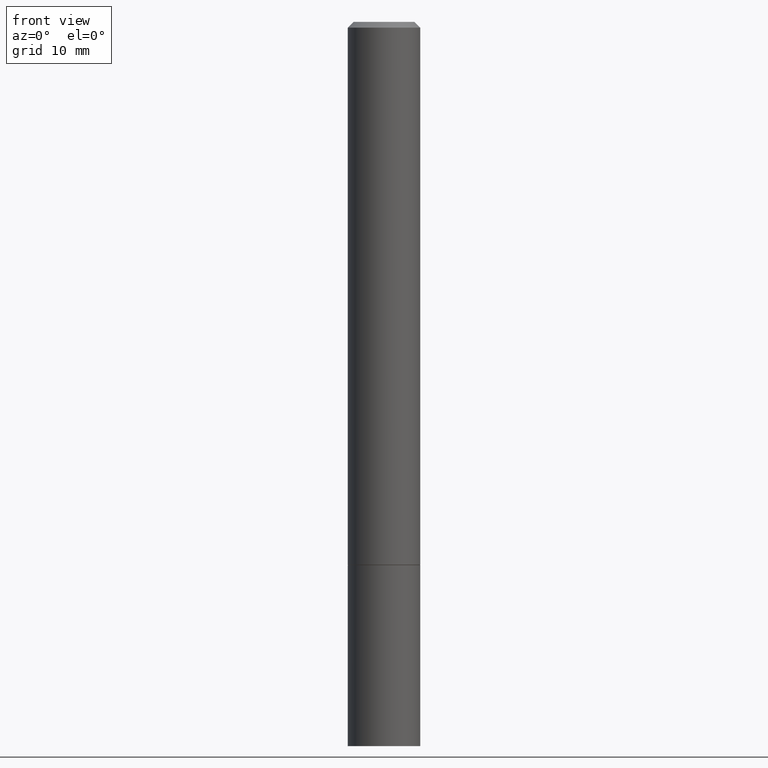
[diagram: clean part render]
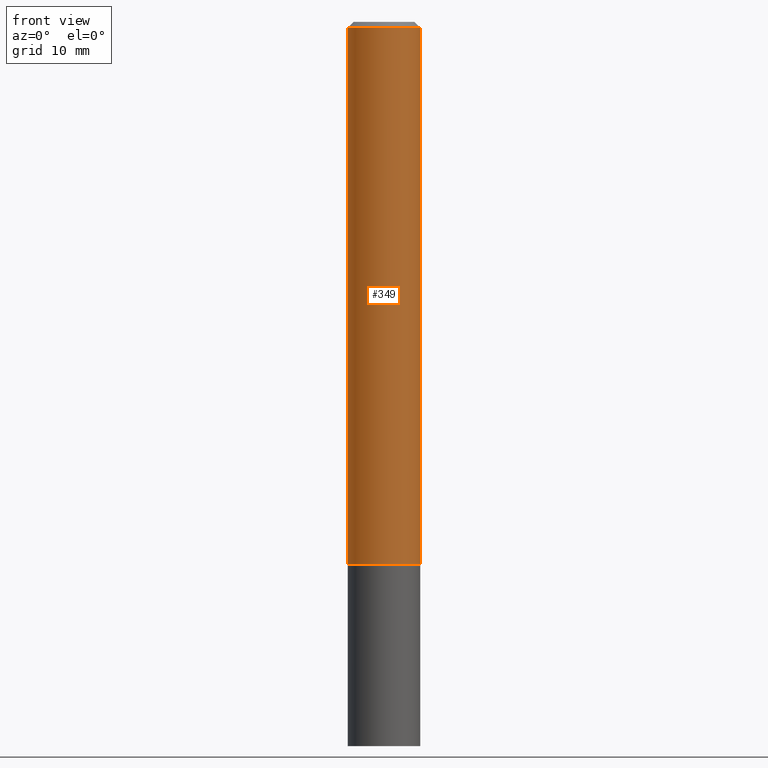
[diagram: same view with one face highlighted and labeled with its STEP entity id]
A machine part, front view. The second image highlights one B-rep face of the part: STEP entity #349.
In plain terms, the highlighted cylindrical surface (edge-blend (fillet) strip) has radius 3.175 mm, axis along (-0, 0, 1).
Its self-contained STEP definition (entity closure, byte-faithful):
#9 = CARTESIAN_POINT ( 'NONE',  ( -0.1249999999999998335, 8.030407079339190545E-16, -0.02000000000000006287 ) ) ;
#22 = CARTESIAN_POINT ( 'NONE',  ( 4.890937612370288923E-31, -6.982962677686312563E-17, -0.02000000000000006287 ) ) ;
#28 = DIRECTION ( 'NONE',  ( -2.445468806185136597E-29, 3.491481338843145583E-15, 1.000000000000000000 ) ) ;
#29 = CARTESIAN_POINT ( 'NONE',  ( 0.1249999999999998335, -9.273918764983033630E-16, -0.02000000000000006287 ) ) ;
#41 = VECTOR ( 'NONE', #333, 39.37007874015748143 ) ;
#47 = AXIS2_PLACEMENT_3D ( 'NONE', #281, #28, #219 ) ;
#59 = EDGE_CURVE ( 'NONE', #97, #124, #200, .T. ) ;
#69 = DIRECTION ( 'NONE',  ( 1.000000000000000000, -6.982962677686266711E-15, 4.876176775795935793E-29 ) ) ;
#77 = ORIENTED_EDGE ( 'NONE', *, *, #140, .F. ) ;
#78 = ORIENTED_EDGE ( 'NONE', *, *, #59, .T. ) ;
#91 = LINE ( 'NONE', #118, #266 ) ;
#93 = CARTESIAN_POINT ( 'NONE',  ( 0.000000000000000000, 0.000000000000000000, 0.000000000000000000 ) ) ;
#97 = VERTEX_POINT ( 'NONE', #308 ) ;
#115 = AXIS2_PLACEMENT_3D ( 'NONE', #22, #132, #337 ) ;
#117 = FACE_OUTER_BOUND ( 'NONE', #238, .T. ) ;
#118 = CARTESIAN_POINT ( 'NONE',  ( -0.1249999999999999306, 8.881784197001247393E-16, -6.148668862818628724E-30 ) ) ;
#124 = VERTEX_POINT ( 'NONE', #138 ) ;
#128 = ORIENTED_EDGE ( 'NONE', *, *, #253, .F. ) ;
#129 = CARTESIAN_POINT ( 'NONE',  ( 0.1249999999999999306, -8.728703347107828458E-16, 6.095220969744916238E-30 ) ) ;
#132 = DIRECTION ( 'NONE',  ( -2.445468806185136597E-29, 3.491481338843145583E-15, 1.000000000000000000 ) ) ;
#138 = CARTESIAN_POINT ( 'NONE',  ( 0.1250000000000000278, -7.415906363702839039E-15, -1.874000000000000110 ) ) ;
#140 = EDGE_CURVE ( 'NONE', #336, #181, #311, .T. ) ;
#155 = ORIENTED_EDGE ( 'NONE', *, *, #354, .T. ) ;
#181 = VERTEX_POINT ( 'NONE', #29 ) ;
#200 = CIRCLE ( 'NONE', #47, 0.1250000000000000278 ) ;
#201 = DIRECTION ( 'NONE',  ( -2.445468806185136597E-29, 3.491481338843145583E-15, 1.000000000000000000 ) ) ;
#219 = DIRECTION ( 'NONE',  ( 1.000000000000000000, -6.982962677686269077E-15, 0.000000000000000000 ) ) ;
#224 = AXIS2_PLACEMENT_3D ( 'NONE', #93, #201, #69 ) ;
#233 = CYLINDRICAL_SURFACE ( 'NONE', #224, 0.1249999999999999306 ) ;
#238 = EDGE_LOOP ( 'NONE', ( #128, #78, #155, #77 ) ) ;
#253 = EDGE_CURVE ( 'NONE', #97, #336, #91, .T. ) ;
#266 = VECTOR ( 'NONE', #323, 39.37007874015748143 ) ;
#281 = CARTESIAN_POINT ( 'NONE',  ( 4.582808542790945516E-29, -6.543036028992054911E-15, -1.874000000000000110 ) ) ;
#301 = LINE ( 'NONE', #129, #41 ) ;
#308 = CARTESIAN_POINT ( 'NONE',  ( -0.1250000000000000555, -2.418254408184330322E-15, -1.874000000000000110 ) ) ;
#311 = CIRCLE ( 'NONE', #115, 0.1249999999999998335 ) ;
#323 = DIRECTION ( 'NONE',  ( -2.445468806185136877E-29, 3.491481338843145188E-15, 1.000000000000000000 ) ) ;
#333 = DIRECTION ( 'NONE',  ( -2.445468806185136877E-29, 3.491481338843145188E-15, 1.000000000000000000 ) ) ;
#336 = VERTEX_POINT ( 'NONE', #9 ) ;
#337 = DIRECTION ( 'NONE',  ( 1.000000000000000000, -6.982962677686266711E-15, 0.000000000000000000 ) ) ;
#349 = ADVANCED_FACE ( 'NONE', ( #117 ), #233, .T. ) ;
#354 = EDGE_CURVE ( 'NONE', #124, #181, #301, .T. ) ;